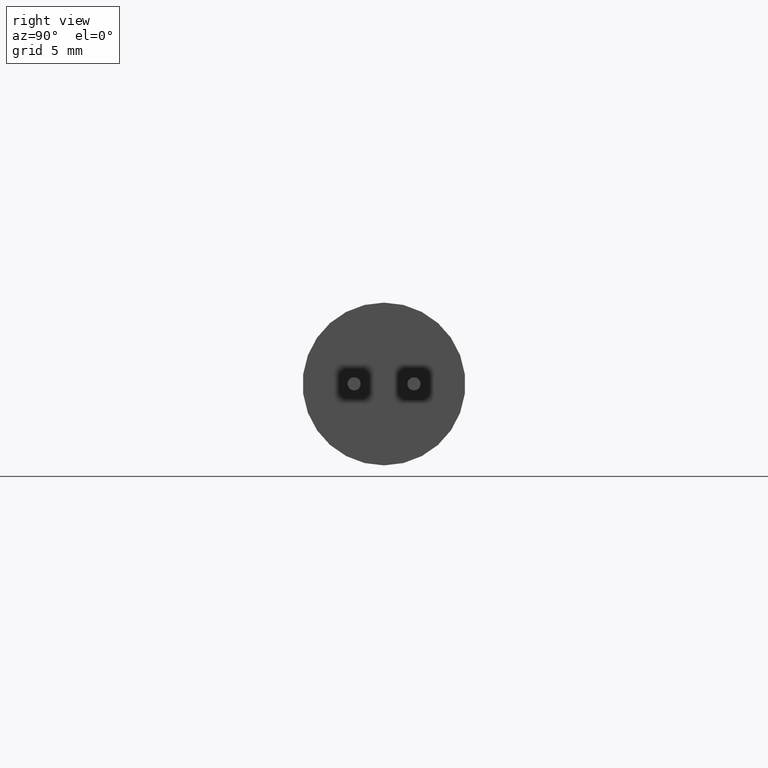
[diagram: clean part render]
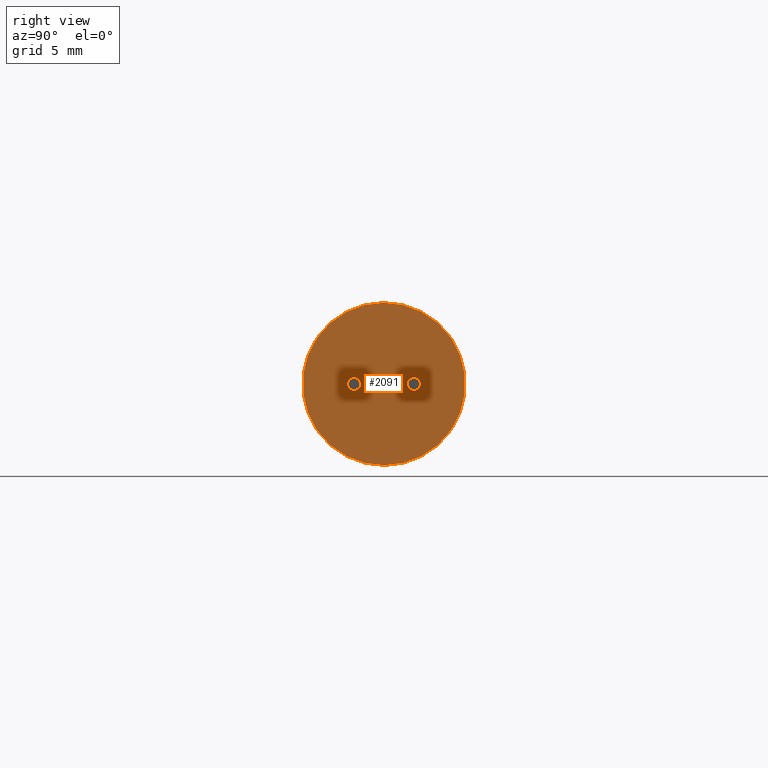
[diagram: same view with one face highlighted and labeled with its STEP entity id]
A machine part, right view. The second image highlights one B-rep face of the part: STEP entity #2091.
In plain terms, the highlighted planar face has unit normal (1, 0, 0).
Its self-contained STEP definition (entity closure, byte-faithful):
#30 = AXIS2_PLACEMENT_3D ( 'NONE', #2311, #1487, #2829 ) ;
#65 = VERTEX_POINT ( 'NONE', #1987 ) ;
#67 = CARTESIAN_POINT ( 'NONE',  ( 10.00000000000000000, 0.0000000000000000000, 0.0000000000000000000 ) ) ;
#86 = EDGE_CURVE ( 'NONE', #2086, #2450, #923, .T. ) ;
#175 = CARTESIAN_POINT ( 'NONE',  ( 10.00000000000000000, -1.250000000000000000, 0.0000000000000000000 ) ) ;
#208 = CIRCLE ( 'NONE', #1994, 0.2750000000000000200 ) ;
#307 = ORIENTED_EDGE ( 'NONE', *, *, #86, .F. ) ;
#320 = EDGE_CURVE ( 'NONE', #861, #686, #1954, .T. ) ;
#393 = DIRECTION ( 'NONE',  ( 0.0000000000000000000, 0.0000000000000000000, -1.000000000000000000 ) ) ;
#398 = CARTESIAN_POINT ( 'NONE',  ( 10.00000000000000000, 0.0000000000000000000, 0.0000000000000000000 ) ) ;
#421 = DIRECTION ( 'NONE',  ( 1.000000000000000000, 0.0000000000000000000, 0.0000000000000000000 ) ) ;
#487 = DIRECTION ( 'NONE',  ( 0.0000000000000000000, 0.0000000000000000000, -1.000000000000000000 ) ) ;
#509 = AXIS2_PLACEMENT_3D ( 'NONE', #398, #421, #2277 ) ;
#535 = ORIENTED_EDGE ( 'NONE', *, *, #320, .T. ) ;
#589 = CIRCLE ( 'NONE', #639, 0.2750000000000000200 ) ;
#605 = EDGE_CURVE ( 'NONE', #2450, #2086, #589, .T. ) ;
#627 = DIRECTION ( 'NONE',  ( 1.000000000000000000, 0.0000000000000000000, 0.0000000000000000000 ) ) ;
#639 = AXIS2_PLACEMENT_3D ( 'NONE', #2057, #1250, #487 ) ;
#686 = VERTEX_POINT ( 'NONE', #2341 ) ;
#821 = EDGE_LOOP ( 'NONE', ( #971, #2759 ) ) ;
#833 = AXIS2_PLACEMENT_3D ( 'NONE', #933, #3312, #393 ) ;
#861 = VERTEX_POINT ( 'NONE', #1634 ) ;
#923 = CIRCLE ( 'NONE', #833, 0.2750000000000000200 ) ;
#933 = CARTESIAN_POINT ( 'NONE',  ( 10.00000000000000000, 1.250000000000000000, 0.0000000000000000000 ) ) ;
#955 = DIRECTION ( 'NONE',  ( 0.0000000000000000000, 0.0000000000000000000, -1.000000000000000000 ) ) ;
#971 = ORIENTED_EDGE ( 'NONE', *, *, #1654, .F. ) ;
#1250 = DIRECTION ( 'NONE',  ( 1.000000000000000000, 0.0000000000000000000, 0.0000000000000000000 ) ) ;
#1368 = CARTESIAN_POINT ( 'NONE',  ( 10.00000000000000000, 1.250000000000000000, -0.2750000000000000200 ) ) ;
#1451 = ORIENTED_EDGE ( 'NONE', *, *, #605, .F. ) ;
#1487 = DIRECTION ( 'NONE',  ( 1.000000000000000000, 0.0000000000000000000, 0.0000000000000000000 ) ) ;
#1519 = CARTESIAN_POINT ( 'NONE',  ( 10.00000000000000000, -1.250000000000000000, 0.2750000000000000200 ) ) ;
#1594 = EDGE_LOOP ( 'NONE', ( #307, #1451 ) ) ;
#1618 = FACE_BOUND ( 'NONE', #821, .T. ) ;
#1634 = CARTESIAN_POINT ( 'NONE',  ( 10.00000000000000000, 4.163799117101000600E-016, -3.399999999999999900 ) ) ;
#1654 = EDGE_CURVE ( 'NONE', #2887, #65, #208, .T. ) ;
#1714 = AXIS2_PLACEMENT_3D ( 'NONE', #67, #2989, #3243 ) ;
#1830 = AXIS2_PLACEMENT_3D ( 'NONE', #2181, #627, #3247 ) ;
#1843 = FACE_BOUND ( 'NONE', #1594, .T. ) ;
#1954 = CIRCLE ( 'NONE', #1714, 3.399999999999999900 ) ;
#1987 = CARTESIAN_POINT ( 'NONE',  ( 10.00000000000000000, -1.250000000000000000, -0.2750000000000000200 ) ) ;
#1994 = AXIS2_PLACEMENT_3D ( 'NONE', #175, #2292, #955 ) ;
#2057 = CARTESIAN_POINT ( 'NONE',  ( 10.00000000000000000, 1.250000000000000000, 0.0000000000000000000 ) ) ;
#2086 = VERTEX_POINT ( 'NONE', #2234 ) ;
#2091 = ADVANCED_FACE ( 'NONE', ( #1843, #2394, #1618 ), #2804, .T. ) ;
#2181 = CARTESIAN_POINT ( 'NONE',  ( 10.00000000000000000, -1.250000000000000000, 0.0000000000000000000 ) ) ;
#2234 = CARTESIAN_POINT ( 'NONE',  ( 10.00000000000000000, 1.250000000000000000, 0.2750000000000000200 ) ) ;
#2277 = DIRECTION ( 'NONE',  ( 0.0000000000000000000, 0.0000000000000000000, -1.000000000000000000 ) ) ;
#2292 = DIRECTION ( 'NONE',  ( 1.000000000000000000, 0.0000000000000000000, 0.0000000000000000000 ) ) ;
#2311 = CARTESIAN_POINT ( 'NONE',  ( 10.00000000000000000, 0.0000000000000000000, 0.0000000000000000000 ) ) ;
#2341 = CARTESIAN_POINT ( 'NONE',  ( 10.00000000000000000, 0.0000000000000000000, 3.399999999999999900 ) ) ;
#2394 = FACE_OUTER_BOUND ( 'NONE', #2768, .T. ) ;
#2450 = VERTEX_POINT ( 'NONE', #1368 ) ;
#2464 = CIRCLE ( 'NONE', #1830, 0.2750000000000000200 ) ;
#2492 = EDGE_CURVE ( 'NONE', #65, #2887, #2464, .T. ) ;
#2506 = CIRCLE ( 'NONE', #509, 3.399999999999999900 ) ;
#2759 = ORIENTED_EDGE ( 'NONE', *, *, #2492, .F. ) ;
#2768 = EDGE_LOOP ( 'NONE', ( #3097, #535 ) ) ;
#2804 = PLANE ( 'NONE',  #30 ) ;
#2829 = DIRECTION ( 'NONE',  ( 0.0000000000000000000, 0.0000000000000000000, -1.000000000000000000 ) ) ;
#2887 = VERTEX_POINT ( 'NONE', #1519 ) ;
#2989 = DIRECTION ( 'NONE',  ( 1.000000000000000000, 0.0000000000000000000, 0.0000000000000000000 ) ) ;
#3097 = ORIENTED_EDGE ( 'NONE', *, *, #3325, .T. ) ;
#3243 = DIRECTION ( 'NONE',  ( 0.0000000000000000000, 0.0000000000000000000, -1.000000000000000000 ) ) ;
#3247 = DIRECTION ( 'NONE',  ( 0.0000000000000000000, 0.0000000000000000000, -1.000000000000000000 ) ) ;
#3312 = DIRECTION ( 'NONE',  ( 1.000000000000000000, 0.0000000000000000000, 0.0000000000000000000 ) ) ;
#3325 = EDGE_CURVE ( 'NONE', #686, #861, #2506, .T. ) ;